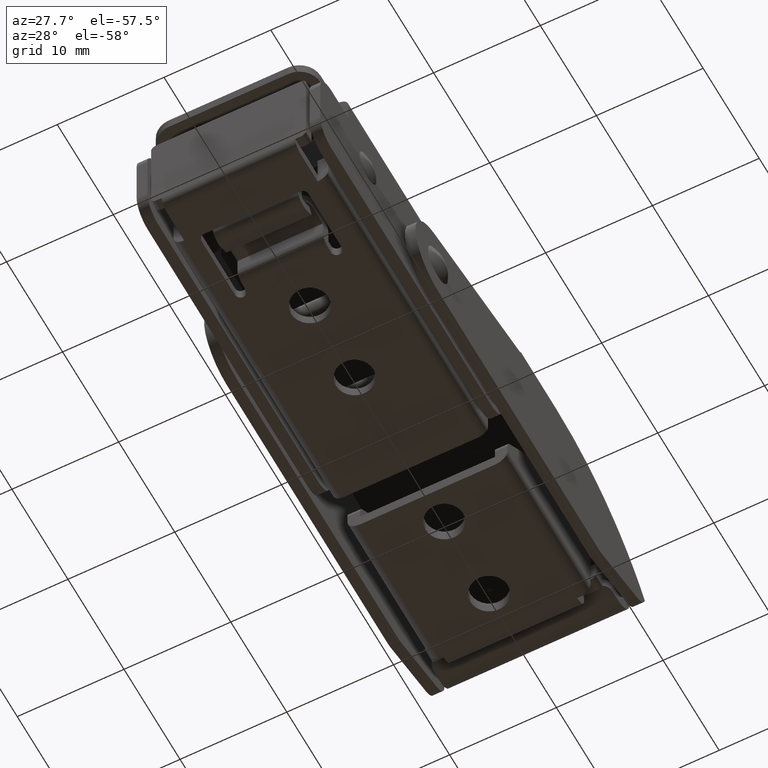
[diagram: clean part render]
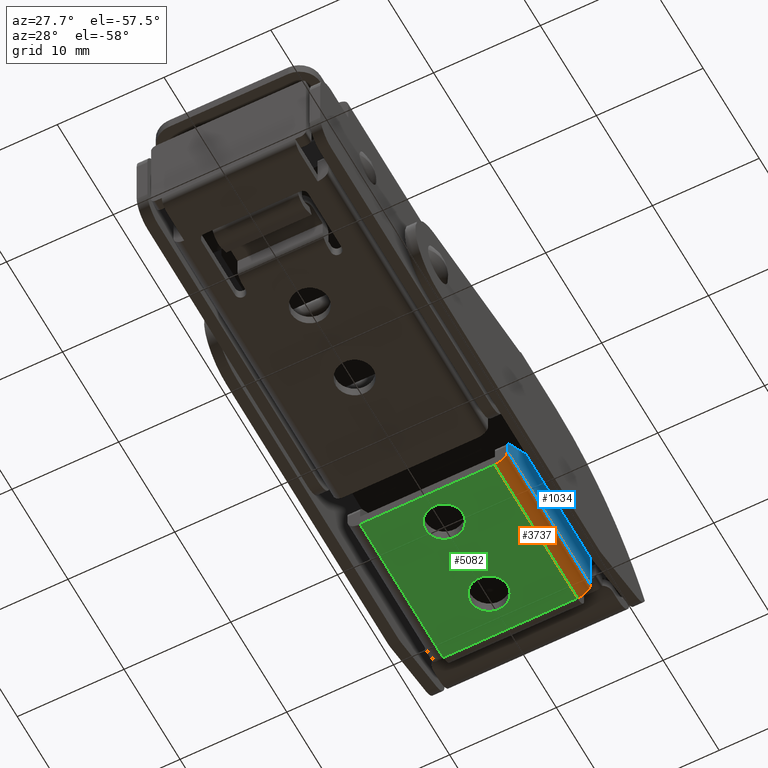
[diagram: same view with three faces highlighted in distinct colors, each labeled with its STEP entity id]
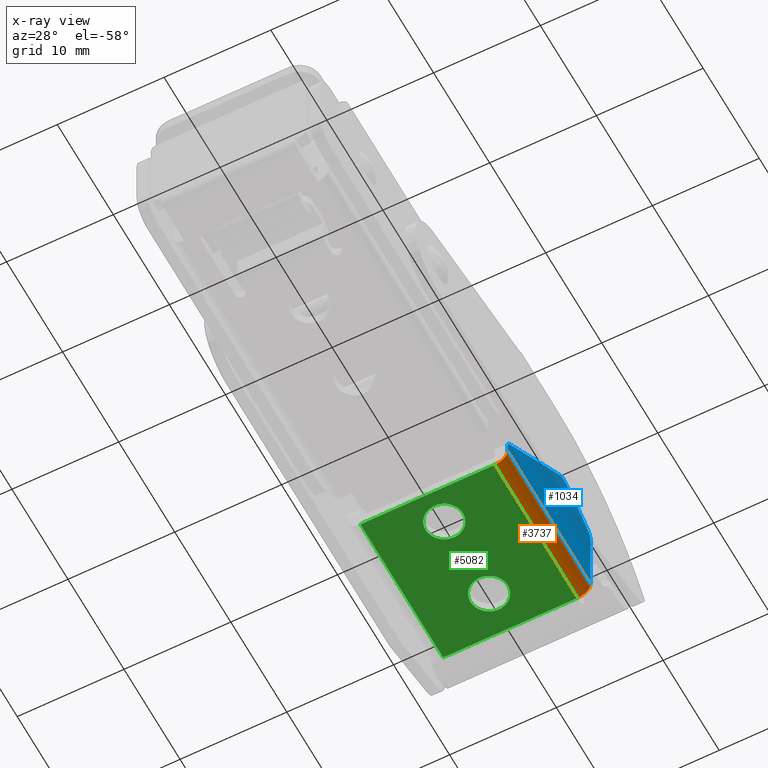
[diagram: x-ray of the same camera — body ghosted, the three highlighted faces saturated]
A machine part, auxiliary view with three faces highlighted in distinct colors.
The next image is the same camera in x-ray (body ghosted, the three faces saturated) — at least one of them is partly hidden behind the body in this view.
Their STEP definitions:

[orange] entity #3737 — the highlighted cylindrical surface (edge-blend (fillet) strip) has radius 1.2 mm, axis along (0, -1, 0).
#423 = AXIS2_PLACEMENT_3D ( 'NONE', #2281, #6584, #2902 ) ;
#614 = AXIS2_PLACEMENT_3D ( 'NONE', #7590, #2038, #1475 ) ;
#1085 = FACE_OUTER_BOUND ( 'NONE', #4970, .T. ) ;
#1408 = ORIENTED_EDGE ( 'NONE', *, *, #3455, .F. ) ;
#1459 = EDGE_CURVE ( 'NONE', #7539, #4038, #1526, .T. ) ;
#1475 = DIRECTION ( 'NONE',  ( 0.0000000000000000000, 0.0000000000000000000, 1.000000000000000000 ) ) ;
#1526 = CIRCLE ( 'NONE', #614, 1.199999999999999700 ) ;
#1547 = CARTESIAN_POINT ( 'NONE',  ( 6.299999999999999800, 4.238105416493570300, 1.199999999999999700 ) ) ;
#1972 = VECTOR ( 'NONE', #7985, 1000.000000000000000 ) ;
#2038 = DIRECTION ( 'NONE',  ( 0.0000000000000000000, 1.000000000000000000, -1.989640163955118800E-016 ) ) ;
#2281 = CARTESIAN_POINT ( 'NONE',  ( 6.299999999999999800, 0.0000000000000000000, 1.199999999999999700 ) ) ;
#2335 = DIRECTION ( 'NONE',  ( -0.0000000000000000000, -1.000000000000000000, 0.0000000000000000000 ) ) ;
#2431 = LINE ( 'NONE', #6643, #7147 ) ;
#2513 = CARTESIAN_POINT ( 'NONE',  ( 7.500000000000000000, 14.80000000000000200, 1.200000000000001500 ) ) ;
#2902 = DIRECTION ( 'NONE',  ( 0.0000000000000000000, -3.469446951953613700E-016, -1.000000000000000000 ) ) ;
#2981 = EDGE_CURVE ( 'NONE', #6802, #7539, #3457, .T. ) ;
#3076 = CARTESIAN_POINT ( 'NONE',  ( 7.500000000000000000, 14.80000000000000400, 1.199999999999999700 ) ) ;
#3239 = ORIENTED_EDGE ( 'NONE', *, *, #2981, .F. ) ;
#3455 = EDGE_CURVE ( 'NONE', #6456, #6802, #5059, .T. ) ;
#3457 = LINE ( 'NONE', #3076, #1972 ) ;
#3737 = ADVANCED_FACE ( 'NONE', ( #1085 ), #5843, .T. ) ;
#4038 = VERTEX_POINT ( 'NONE', #6253 ) ;
#4152 = ORIENTED_EDGE ( 'NONE', *, *, #1459, .F. ) ;
#4970 = EDGE_LOOP ( 'NONE', ( #1408, #6593, #4152, #3239 ) ) ;
#5033 = CARTESIAN_POINT ( 'NONE',  ( 7.500000000000000000, 4.163336342344335500E-016, 1.199999999999999700 ) ) ;
#5059 = CIRCLE ( 'NONE', #423, 1.200000000000000000 ) ;
#5843 = CYLINDRICAL_SURFACE ( 'NONE', #6873, 1.200000000000000000 ) ;
#5902 = DIRECTION ( 'NONE',  ( 0.0000000000000000000, 0.0000000000000000000, -1.000000000000000000 ) ) ;
#6253 = CARTESIAN_POINT ( 'NONE',  ( 6.299999999999999800, 14.80000000000000200, 0.0000000000000000000 ) ) ;
#6456 = VERTEX_POINT ( 'NONE', #6981 ) ;
#6520 = DIRECTION ( 'NONE',  ( 0.0000000000000000000, -1.000000000000000000, 0.0000000000000000000 ) ) ;
#6584 = DIRECTION ( 'NONE',  ( 0.0000000000000000000, -1.000000000000000000, 3.469446951953613700E-016 ) ) ;
#6593 = ORIENTED_EDGE ( 'NONE', *, *, #7352, .F. ) ;
#6643 = CARTESIAN_POINT ( 'NONE',  ( 6.299999999999999800, 0.0000000000000000000, 0.0000000000000000000 ) ) ;
#6802 = VERTEX_POINT ( 'NONE', #5033 ) ;
#6873 = AXIS2_PLACEMENT_3D ( 'NONE', #1547, #6520, #5902 ) ;
#6981 = CARTESIAN_POINT ( 'NONE',  ( 6.299999999999999800, 0.0000000000000000000, 0.0000000000000000000 ) ) ;
#7147 = VECTOR ( 'NONE', #2335, 1000.000000000000000 ) ;
#7352 = EDGE_CURVE ( 'NONE', #4038, #6456, #2431, .T. ) ;
#7539 = VERTEX_POINT ( 'NONE', #2513 ) ;
#7590 = CARTESIAN_POINT ( 'NONE',  ( 6.299999999999999800, 14.80000000000000100, 1.199999999999999700 ) ) ;
#7985 = DIRECTION ( 'NONE',  ( 0.0000000000000000000, 1.000000000000000000, -0.0000000000000000000 ) ) ;

[blue] entity #1034 — the highlighted planar face has unit normal (1, 0, 0).
#89 = FACE_OUTER_BOUND ( 'NONE', #2933, .T. ) ;
#159 = EDGE_CURVE ( 'NONE', #2371, #3799, #4259, .T. ) ;
#269 = ORIENTED_EDGE ( 'NONE', *, *, #1353, .T. ) ;
#478 = ORIENTED_EDGE ( 'NONE', *, *, #7705, .F. ) ;
#657 = DIRECTION ( 'NONE',  ( 0.0000000000000000000, 0.0000000000000000000, -1.000000000000000000 ) ) ;
#865 = CARTESIAN_POINT ( 'NONE',  ( 7.500000000000000000, 14.80000000000000200, 2.000000000000000000 ) ) ;
#941 = CARTESIAN_POINT ( 'NONE',  ( 7.500000000000000000, 14.80000000000000400, 8.149629784781749800 ) ) ;
#1004 = CARTESIAN_POINT ( 'NONE',  ( 7.500000000000000000, 10.03606618285358600, 10.80365130097728300 ) ) ;
#1034 = ADVANCED_FACE ( 'NONE', ( #89 ), #6144, .T. ) ;
#1161 = ORIENTED_EDGE ( 'NONE', *, *, #5801, .T. ) ;
#1183 = VECTOR ( 'NONE', #3778, 1000.000000000000200 ) ;
#1237 = AXIS2_PLACEMENT_3D ( 'NONE', #6274, #2613, #6906 ) ;
#1353 = EDGE_CURVE ( 'NONE', #3799, #4960, #7032, .T. ) ;
#1355 = VERTEX_POINT ( 'NONE', #1395 ) ;
#1395 = CARTESIAN_POINT ( 'NONE',  ( 7.500000000000000000, 7.080268323630834900E-016, 2.040748402175165400 ) ) ;
#1407 = EDGE_CURVE ( 'NONE', #4337, #1690, #2706, .T. ) ;
#1624 = DIRECTION ( 'NONE',  ( 1.000000000000000000, 0.0000000000000000000, 0.0000000000000000000 ) ) ;
#1686 = EDGE_CURVE ( 'NONE', #5213, #4431, #3274, .T. ) ;
#1690 = VERTEX_POINT ( 'NONE', #7162 ) ;
#1697 = VECTOR ( 'NONE', #2109, 1000.000000000000000 ) ;
#1734 = AXIS2_PLACEMENT_3D ( 'NONE', #1816, #2475, #6770 ) ;
#1795 = DIRECTION ( 'NONE',  ( 1.000000000000000000, 0.0000000000000000000, 0.0000000000000000000 ) ) ;
#1816 = CARTESIAN_POINT ( 'NONE',  ( 7.500000000000000000, 4.238105416493570300, -8.500000000109972500 ) ) ;
#1878 = CARTESIAN_POINT ( 'NONE',  ( 7.500000000000000000, 14.80000000000000400, 8.718779945256164500 ) ) ;
#1920 = LINE ( 'NONE', #6398, #5026 ) ;
#1972 = VECTOR ( 'NONE', #7985, 1000.000000000000000 ) ;
#1987 = DIRECTION ( 'NONE',  ( 0.0000000000000000000, 3.469446951953613700E-016, 1.000000000000000000 ) ) ;
#2099 = LINE ( 'NONE', #3222, #6807 ) ;
#2109 = DIRECTION ( 'NONE',  ( 0.0000000000000000000, -1.020425574104004200E-015, 1.000000000000000000 ) ) ;
#2312 = EDGE_CURVE ( 'NONE', #6802, #1355, #2099, .T. ) ;
#2330 = ORIENTED_EDGE ( 'NONE', *, *, #159, .T. ) ;
#2371 = VERTEX_POINT ( 'NONE', #2688 ) ;
#2475 = DIRECTION ( 'NONE',  ( 1.000000000000000000, 0.0000000000000000000, 0.0000000000000000000 ) ) ;
#2513 = CARTESIAN_POINT ( 'NONE',  ( 7.500000000000000000, 14.80000000000000200, 1.200000000000001500 ) ) ;
#2570 = ORIENTED_EDGE ( 'NONE', *, *, #1407, .T. ) ;
#2576 = ORIENTED_EDGE ( 'NONE', *, *, #3785, .T. ) ;
#2613 = DIRECTION ( 'NONE',  ( 1.000000000000000000, 0.0000000000000000000, 0.0000000000000000000 ) ) ;
#2620 = EDGE_CURVE ( 'NONE', #4337, #7539, #7776, .T. ) ;
#2688 = CARTESIAN_POINT ( 'NONE',  ( 7.500000000000000000, 10.33804330610148600, 10.75696647290885700 ) ) ;
#2706 = LINE ( 'NONE', #4445, #1697 ) ;
#2901 = CARTESIAN_POINT ( 'NONE',  ( 7.500000000000000000, 13.80000000000000200, 8.149629784781749800 ) ) ;
#2933 = EDGE_LOOP ( 'NONE', ( #3132, #5835, #4881, #2570, #478, #4930, #2576, #2330, #269, #4080, #1161 ) ) ;
#2981 = EDGE_CURVE ( 'NONE', #6802, #7539, #3457, .T. ) ;
#3038 = EDGE_CURVE ( 'NONE', #4960, #6007, #4494, .T. ) ;
#3076 = CARTESIAN_POINT ( 'NONE',  ( 7.500000000000000000, 14.80000000000000400, 1.199999999999999700 ) ) ;
#3119 = AXIS2_PLACEMENT_3D ( 'NONE', #2901, #6535, #4735 ) ;
#3132 = ORIENTED_EDGE ( 'NONE', *, *, #2312, .F. ) ;
#3157 = DIRECTION ( 'NONE',  ( 0.0000000000000000000, -1.989640163955118500E-016, -1.000000000000000000 ) ) ;
#3222 = CARTESIAN_POINT ( 'NONE',  ( 7.500000000000000000, 0.0000000000000000000, 0.0000000000000000000 ) ) ;
#3274 = CIRCLE ( 'NONE', #3119, 1.000000000000000000 ) ;
#3367 = DIRECTION ( 'NONE',  ( 0.0000000000000000000, 0.0000000000000000000, -1.000000000000000000 ) ) ;
#3457 = LINE ( 'NONE', #3076, #1972 ) ;
#3778 = DIRECTION ( 'NONE',  ( 0.0000000000000000000, -0.7585218189386393500, -0.6516476426674295800 ) ) ;
#3785 = EDGE_CURVE ( 'NONE', #4431, #2371, #4020, .T. ) ;
#3799 = VERTEX_POINT ( 'NONE', #1004 ) ;
#4020 = CIRCLE ( 'NONE', #4397, 20.20000000000112500 ) ;
#4080 = ORIENTED_EDGE ( 'NONE', *, *, #3038, .T. ) ;
#4259 = CIRCLE ( 'NONE', #5402, 0.9999999999999991100 ) ;
#4337 = VERTEX_POINT ( 'NONE', #865 ) ;
#4397 = AXIS2_PLACEMENT_3D ( 'NONE', #5332, #1624, #5953 ) ;
#4431 = VERTEX_POINT ( 'NONE', #4659 ) ;
#4445 = CARTESIAN_POINT ( 'NONE',  ( 7.500000000000000000, 14.80000000000001100, -8.500000000109961800 ) ) ;
#4468 = CARTESIAN_POINT ( 'NONE',  ( 7.500000000000000000, 10.03606618285358600, 9.803651300977282500 ) ) ;
#4494 = LINE ( 'NONE', #7448, #1183 ) ;
#4659 = CARTESIAN_POINT ( 'NONE',  ( 7.500000000000000000, 14.29801534289093500, 9.016798002744810200 ) ) ;
#4735 = DIRECTION ( 'NONE',  ( 0.0000000000000000000, 0.0000000000000000000, -1.000000000000000000 ) ) ;
#4881 = ORIENTED_EDGE ( 'NONE', *, *, #2620, .F. ) ;
#4930 = ORIENTED_EDGE ( 'NONE', *, *, #1686, .T. ) ;
#4960 = VERTEX_POINT ( 'NONE', #7512 ) ;
#5026 = VECTOR ( 'NONE', #5205, 1000.000000000000000 ) ;
#5033 = CARTESIAN_POINT ( 'NONE',  ( 7.500000000000000000, 4.163336342344335500E-016, 1.199999999999999700 ) ) ;
#5205 = DIRECTION ( 'NONE',  ( 0.0000000000000000000, -1.989640163955118500E-016, -1.000000000000000000 ) ) ;
#5213 = VERTEX_POINT ( 'NONE', #941 ) ;
#5332 = CARTESIAN_POINT ( 'NONE',  ( 7.500000000000000000, 4.238105416493570300, -8.500000000109972500 ) ) ;
#5402 = AXIS2_PLACEMENT_3D ( 'NONE', #4468, #1795, #657 ) ;
#5801 = EDGE_CURVE ( 'NONE', #6007, #1355, #6988, .T. ) ;
#5835 = ORIENTED_EDGE ( 'NONE', *, *, #2981, .T. ) ;
#5951 = VECTOR ( 'NONE', #3157, 1000.000000000000000 ) ;
#5953 = DIRECTION ( 'NONE',  ( 0.0000000000000000000, 0.0000000000000000000, -1.000000000000000000 ) ) ;
#6007 = VERTEX_POINT ( 'NONE', #7715 ) ;
#6144 = PLANE ( 'NONE',  #1734 ) ;
#6274 = CARTESIAN_POINT ( 'NONE',  ( 7.500000000000000000, 1.000000000000000700, 2.040748402175165000 ) ) ;
#6398 = CARTESIAN_POINT ( 'NONE',  ( 7.500000000000000000, 14.80000000000000400, 8.718779945256164500 ) ) ;
#6535 = DIRECTION ( 'NONE',  ( 1.000000000000000000, 0.0000000000000000000, 0.0000000000000000000 ) ) ;
#6575 = AXIS2_PLACEMENT_3D ( 'NONE', #7529, #7561, #3367 ) ;
#6770 = DIRECTION ( 'NONE',  ( 0.0000000000000000000, 0.0000000000000000000, -1.000000000000000000 ) ) ;
#6802 = VERTEX_POINT ( 'NONE', #5033 ) ;
#6807 = VECTOR ( 'NONE', #1987, 1000.000000000000000 ) ;
#6906 = DIRECTION ( 'NONE',  ( 0.0000000000000000000, 0.0000000000000000000, -1.000000000000000000 ) ) ;
#6988 = CIRCLE ( 'NONE', #1237, 1.000000000000000000 ) ;
#7032 = CIRCLE ( 'NONE', #6575, 0.9999999999999991100 ) ;
#7162 = CARTESIAN_POINT ( 'NONE',  ( 7.500000000000000000, 14.80000000000000100, 3.700000000000000600 ) ) ;
#7448 = CARTESIAN_POINT ( 'NONE',  ( 7.500000000000000000, 9.799999999796488800, 10.91920000000000000 ) ) ;
#7512 = CARTESIAN_POINT ( 'NONE',  ( 7.500000000000000000, 9.384418540186157300, 10.56217311991592200 ) ) ;
#7529 = CARTESIAN_POINT ( 'NONE',  ( 7.500000000000000000, 10.03606618285358600, 9.803651300977282500 ) ) ;
#7539 = VERTEX_POINT ( 'NONE', #2513 ) ;
#7561 = DIRECTION ( 'NONE',  ( 1.000000000000000000, 0.0000000000000000000, 0.0000000000000000000 ) ) ;
#7705 = EDGE_CURVE ( 'NONE', #5213, #1690, #1920, .T. ) ;
#7715 = CARTESIAN_POINT ( 'NONE',  ( 7.500000000000000000, 0.3483523573325677500, 2.799270221113802300 ) ) ;
#7776 = LINE ( 'NONE', #1878, #5951 ) ;
#7985 = DIRECTION ( 'NONE',  ( 0.0000000000000000000, 1.000000000000000000, -0.0000000000000000000 ) ) ;

[green] entity #5082 — the highlighted planar face has unit normal (0, 0, 1).
#1 = DIRECTION ( 'NONE',  ( 0.0000000000000000000, 1.000000000000000000, 0.0000000000000000000 ) ) ;
#46 = EDGE_LOOP ( 'NONE', ( #1664, #4655 ) ) ;
#187 = LINE ( 'NONE', #4126, #4908 ) ;
#214 = PLANE ( 'NONE',  #6092 ) ;
#228 = DIRECTION ( 'NONE',  ( 0.0000000000000000000, 0.0000000000000000000, -1.000000000000000000 ) ) ;
#335 = EDGE_CURVE ( 'NONE', #4038, #1179, #4749, .T. ) ;
#348 = FACE_BOUND ( 'NONE', #6422, .T. ) ;
#397 = CARTESIAN_POINT ( 'NONE',  ( 6.275000000000000400, 14.80000000000000200, 2.168404344971008900E-016 ) ) ;
#601 = CARTESIAN_POINT ( 'NONE',  ( 1.750000000000000000, 3.000000000000000000, 0.0000000000000000000 ) ) ;
#773 = EDGE_CURVE ( 'NONE', #1630, #3223, #187, .T. ) ;
#795 = EDGE_LOOP ( 'NONE', ( #3871, #5394, #1139, #4682, #6936, #1268 ) ) ;
#914 = EDGE_CURVE ( 'NONE', #4296, #3319, #1043, .T. ) ;
#933 = LINE ( 'NONE', #397, #2589 ) ;
#982 = EDGE_CURVE ( 'NONE', #3319, #4296, #7038, .T. ) ;
#1018 = DIRECTION ( 'NONE',  ( -1.000000000000000000, -0.0000000000000000000, -0.0000000000000000000 ) ) ;
#1043 = CIRCLE ( 'NONE', #4398, 1.749999999999999800 ) ;
#1060 = DIRECTION ( 'NONE',  ( -1.000000000000000000, 0.0000000000000000000, 0.0000000000000000000 ) ) ;
#1074 = CARTESIAN_POINT ( 'NONE',  ( -6.275000000000000400, 14.80000000000000200, 2.168404344971008900E-016 ) ) ;
#1139 = ORIENTED_EDGE ( 'NONE', *, *, #5986, .T. ) ;
#1179 = VERTEX_POINT ( 'NONE', #2640 ) ;
#1218 = EDGE_CURVE ( 'NONE', #6235, #4379, #7974, .T. ) ;
#1268 = ORIENTED_EDGE ( 'NONE', *, *, #4525, .F. ) ;
#1444 = CARTESIAN_POINT ( 'NONE',  ( 7.500000000000000000, 0.0000000000000000000, 0.0000000000000000000 ) ) ;
#1450 = VECTOR ( 'NONE', #2105, 1000.000000000000000 ) ;
#1630 = VERTEX_POINT ( 'NONE', #1074 ) ;
#1664 = ORIENTED_EDGE ( 'NONE', *, *, #2893, .F. ) ;
#2079 = DIRECTION ( 'NONE',  ( 1.000000000000000000, 0.0000000000000000000, -0.0000000000000000000 ) ) ;
#2105 = DIRECTION ( 'NONE',  ( -1.000000000000000000, -0.0000000000000000000, -0.0000000000000000000 ) ) ;
#2174 = DIRECTION ( 'NONE',  ( -1.000000000000000000, -0.0000000000000000000, -0.0000000000000000000 ) ) ;
#2335 = DIRECTION ( 'NONE',  ( -0.0000000000000000000, -1.000000000000000000, 0.0000000000000000000 ) ) ;
#2361 = VERTEX_POINT ( 'NONE', #3311 ) ;
#2431 = LINE ( 'NONE', #6643, #7147 ) ;
#2443 = AXIS2_PLACEMENT_3D ( 'NONE', #5684, #2584, #5730 ) ;
#2573 = CIRCLE ( 'NONE', #5869, 1.750000000000000000 ) ;
#2584 = DIRECTION ( 'NONE',  ( 0.0000000000000000000, 0.0000000000000000000, -1.000000000000000000 ) ) ;
#2589 = VECTOR ( 'NONE', #1018, 1000.000000000000000 ) ;
#2617 = CARTESIAN_POINT ( 'NONE',  ( 0.0000000000000000000, 11.00000000000000000, 0.0000000000000000000 ) ) ;
#2640 = CARTESIAN_POINT ( 'NONE',  ( 6.275000000000000400, 14.80000000000000200, 2.168404344971008900E-016 ) ) ;
#2859 = VECTOR ( 'NONE', #1, 1000.000000000000000 ) ;
#2893 = EDGE_CURVE ( 'NONE', #4379, #6235, #2573, .T. ) ;
#3223 = VERTEX_POINT ( 'NONE', #5811 ) ;
#3311 = CARTESIAN_POINT ( 'NONE',  ( -6.299999999999999800, 0.0000000000000000000, 0.0000000000000000000 ) ) ;
#3319 = VERTEX_POINT ( 'NONE', #5246 ) ;
#3607 = DIRECTION ( 'NONE',  ( -1.000000000000000000, 0.0000000000000000000, 0.0000000000000000000 ) ) ;
#3832 = FACE_BOUND ( 'NONE', #46, .T. ) ;
#3863 = CARTESIAN_POINT ( 'NONE',  ( 7.500000000000000000, 14.80000000000000200, 0.0000000000000000000 ) ) ;
#3871 = ORIENTED_EDGE ( 'NONE', *, *, #335, .F. ) ;
#3901 = CARTESIAN_POINT ( 'NONE',  ( -1.749999999999999800, 11.00000000000000000, 0.0000000000000000000 ) ) ;
#4038 = VERTEX_POINT ( 'NONE', #6253 ) ;
#4126 = CARTESIAN_POINT ( 'NONE',  ( 7.500000000000000000, 14.80000000000000200, 0.0000000000000000000 ) ) ;
#4287 = CARTESIAN_POINT ( 'NONE',  ( -6.299999999999999800, 0.0000000000000000000, 0.0000000000000000000 ) ) ;
#4296 = VERTEX_POINT ( 'NONE', #3901 ) ;
#4373 = LINE ( 'NONE', #5247, #5841 ) ;
#4379 = VERTEX_POINT ( 'NONE', #7685 ) ;
#4398 = AXIS2_PLACEMENT_3D ( 'NONE', #2617, #228, #7767 ) ;
#4407 = CARTESIAN_POINT ( 'NONE',  ( 0.0000000000000000000, 11.00000000000000000, 0.0000000000000000000 ) ) ;
#4525 = EDGE_CURVE ( 'NONE', #1179, #1630, #933, .T. ) ;
#4655 = ORIENTED_EDGE ( 'NONE', *, *, #1218, .F. ) ;
#4682 = ORIENTED_EDGE ( 'NONE', *, *, #5664, .T. ) ;
#4749 = LINE ( 'NONE', #3863, #1450 ) ;
#4908 = VECTOR ( 'NONE', #5306, 1000.000000000000000 ) ;
#5082 = ADVANCED_FACE ( 'NONE', ( #3832, #348, #6710 ), #214, .F. ) ;
#5239 = AXIS2_PLACEMENT_3D ( 'NONE', #4407, #5626, #1060 ) ;
#5246 = CARTESIAN_POINT ( 'NONE',  ( 1.749999999999999800, 11.00000000000000000, 0.0000000000000000000 ) ) ;
#5247 = CARTESIAN_POINT ( 'NONE',  ( 7.500000000000000000, 0.0000000000000000000, 0.0000000000000000000 ) ) ;
#5306 = DIRECTION ( 'NONE',  ( -1.000000000000000000, -0.0000000000000000000, -0.0000000000000000000 ) ) ;
#5394 = ORIENTED_EDGE ( 'NONE', *, *, #7352, .T. ) ;
#5449 = LINE ( 'NONE', #4287, #2859 ) ;
#5626 = DIRECTION ( 'NONE',  ( 0.0000000000000000000, 0.0000000000000000000, -1.000000000000000000 ) ) ;
#5664 = EDGE_CURVE ( 'NONE', #2361, #3223, #5449, .T. ) ;
#5684 = CARTESIAN_POINT ( 'NONE',  ( 0.0000000000000000000, 3.000000000000000000, 0.0000000000000000000 ) ) ;
#5730 = DIRECTION ( 'NONE',  ( -1.000000000000000000, 0.0000000000000000000, 0.0000000000000000000 ) ) ;
#5786 = DIRECTION ( 'NONE',  ( 0.0000000000000000000, 0.0000000000000000000, 1.000000000000000000 ) ) ;
#5811 = CARTESIAN_POINT ( 'NONE',  ( -6.299999999999999800, 14.80000000000000200, 0.0000000000000000000 ) ) ;
#5841 = VECTOR ( 'NONE', #2174, 1000.000000000000000 ) ;
#5869 = AXIS2_PLACEMENT_3D ( 'NONE', #5909, #7262, #3607 ) ;
#5909 = CARTESIAN_POINT ( 'NONE',  ( 0.0000000000000000000, 3.000000000000000000, 0.0000000000000000000 ) ) ;
#5986 = EDGE_CURVE ( 'NONE', #6456, #2361, #4373, .T. ) ;
#6039 = ORIENTED_EDGE ( 'NONE', *, *, #982, .F. ) ;
#6092 = AXIS2_PLACEMENT_3D ( 'NONE', #1444, #5786, #2079 ) ;
#6235 = VERTEX_POINT ( 'NONE', #601 ) ;
#6253 = CARTESIAN_POINT ( 'NONE',  ( 6.299999999999999800, 14.80000000000000200, 0.0000000000000000000 ) ) ;
#6422 = EDGE_LOOP ( 'NONE', ( #6760, #6039 ) ) ;
#6456 = VERTEX_POINT ( 'NONE', #6981 ) ;
#6643 = CARTESIAN_POINT ( 'NONE',  ( 6.299999999999999800, 0.0000000000000000000, 0.0000000000000000000 ) ) ;
#6710 = FACE_OUTER_BOUND ( 'NONE', #795, .T. ) ;
#6760 = ORIENTED_EDGE ( 'NONE', *, *, #914, .F. ) ;
#6936 = ORIENTED_EDGE ( 'NONE', *, *, #773, .F. ) ;
#6981 = CARTESIAN_POINT ( 'NONE',  ( 6.299999999999999800, 0.0000000000000000000, 0.0000000000000000000 ) ) ;
#7038 = CIRCLE ( 'NONE', #5239, 1.749999999999999800 ) ;
#7147 = VECTOR ( 'NONE', #2335, 1000.000000000000000 ) ;
#7262 = DIRECTION ( 'NONE',  ( 0.0000000000000000000, 0.0000000000000000000, -1.000000000000000000 ) ) ;
#7352 = EDGE_CURVE ( 'NONE', #4038, #6456, #2431, .T. ) ;
#7685 = CARTESIAN_POINT ( 'NONE',  ( -1.750000000000000000, 3.000000000000000000, 0.0000000000000000000 ) ) ;
#7767 = DIRECTION ( 'NONE',  ( -1.000000000000000000, 0.0000000000000000000, 0.0000000000000000000 ) ) ;
#7974 = CIRCLE ( 'NONE', #2443, 1.750000000000000000 ) ;